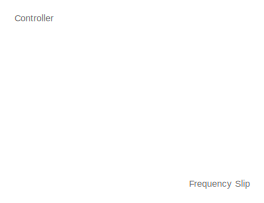
[diagram: root canvas - part 1/7, top right region]
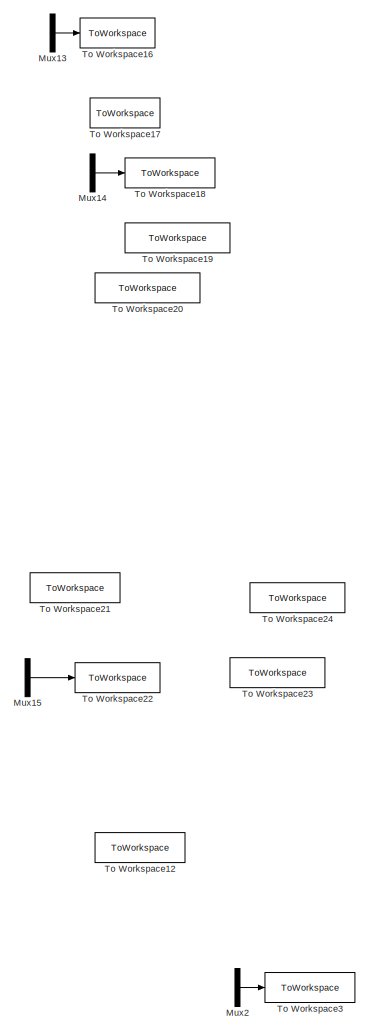
[diagram: root canvas - part 2/7, middle left region]
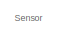
[diagram: root canvas - part 3/7, top center region]
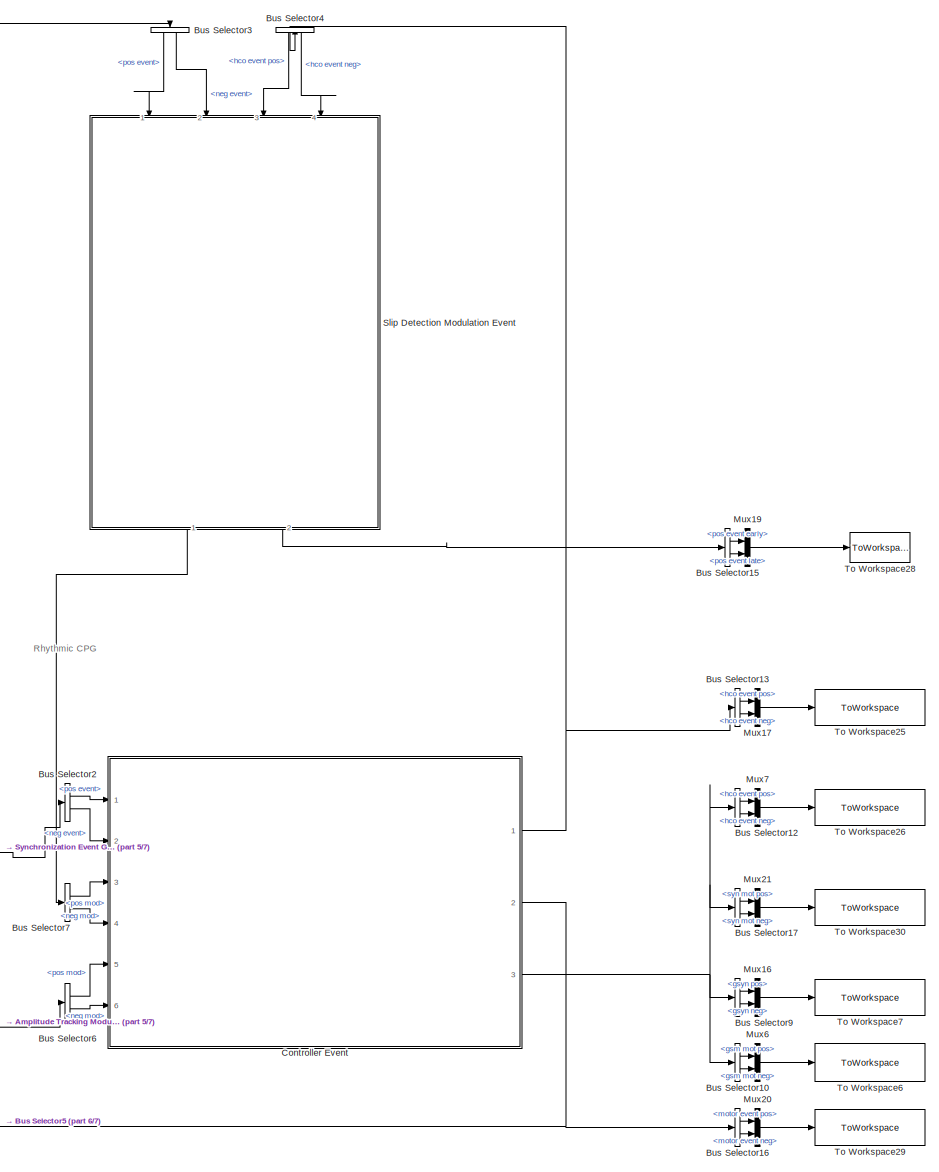
[diagram: root canvas - part 4/7, middle right region]
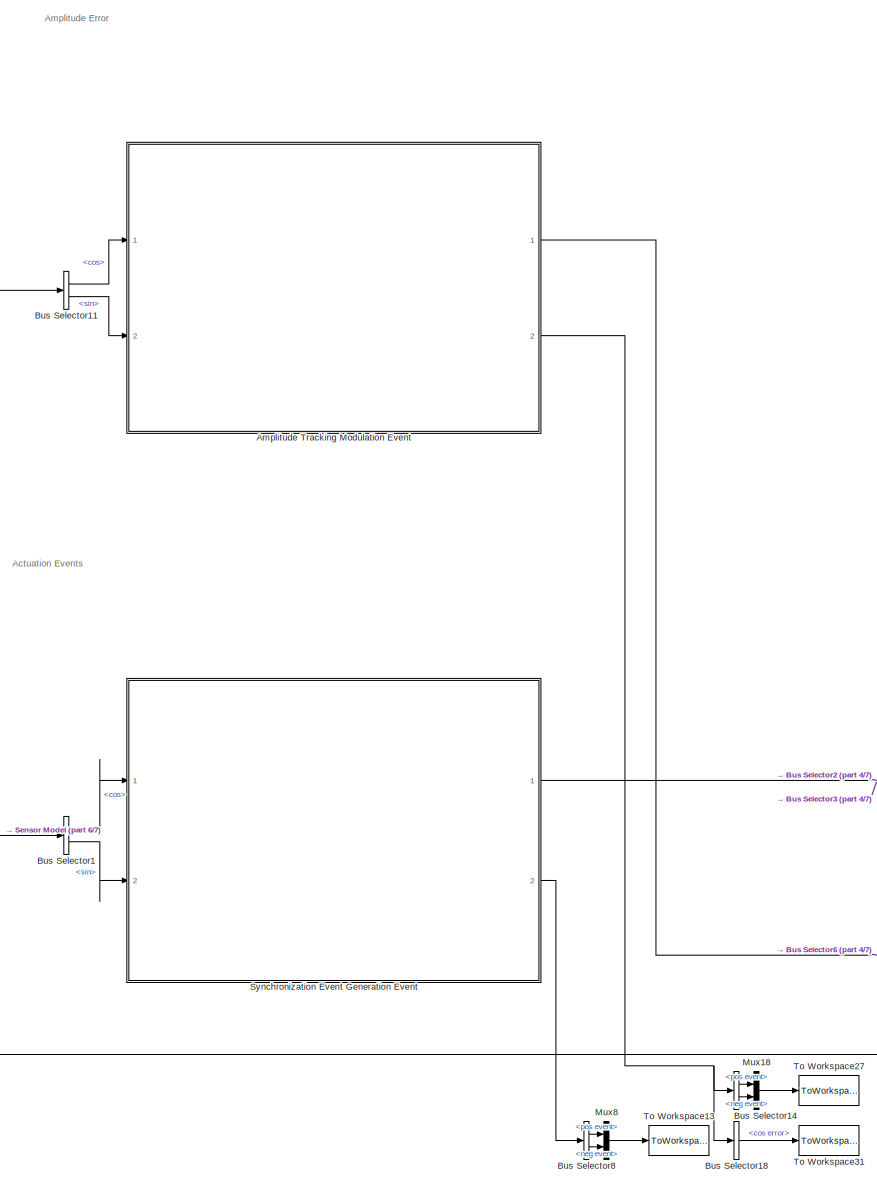
[diagram: root canvas - part 5/7, central region]
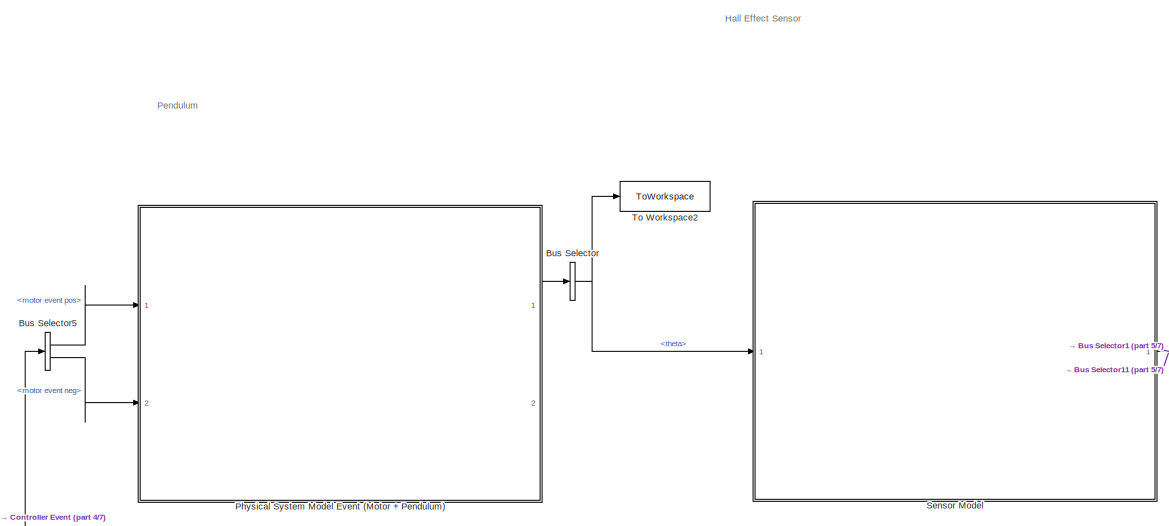
[diagram: root canvas - part 6/7, central region]
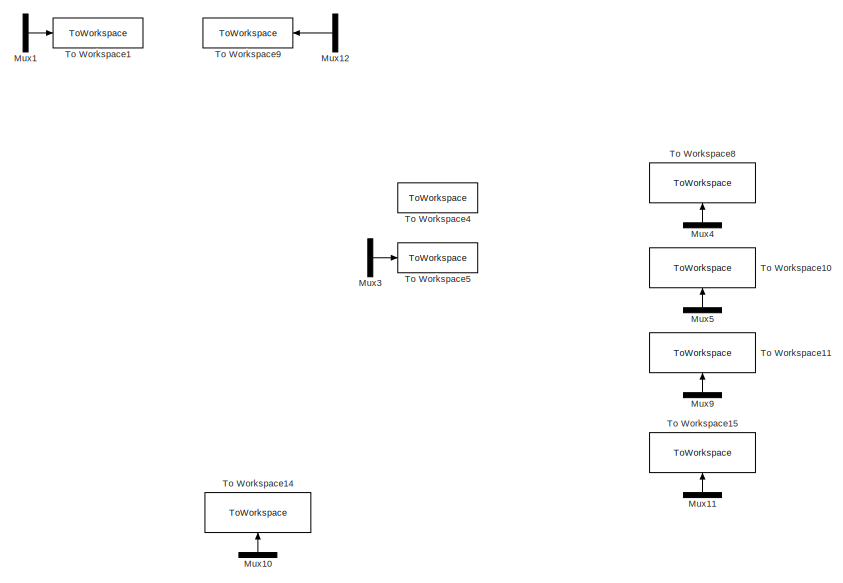
[diagram: root canvas - part 7/7, bottom left region]
MODEL slx_1399390a4108
KIND model
CONFIG AbsTol = auto
CONFIG EnableMultiTasking = off
CONFIG FixedStep = auto
CONFIG MaxStep = auto
CONFIG MinStep = auto
CONFIG RelTol = 1e-3
CONFIG SampleTimeConstraint = Unconstrained
CONFIG SolverName = VariableStepAuto
CONFIG StartTime = 0.0
CONFIG StopTime = 20
WORKSPACE source: mxarray member
WORKSPACE base_gsm = 2.3
WORKSPACE base_gsyn = -2
WORKSPACE cos_amp = 2.5
WORKSPACE cos_center = 0
WORKSPACE friction_factor = 1
WORKSPACE mass_density = 951
WORKSPACE mass_radius = 0.05
WORKSPACE mod_strength_gsm = 1.8
WORKSPACE mod_strength_gsyn = 1.8
WORKSPACE noisePwr = 3e-06
WORKSPACE pendulum_length = 0.4267
WORKSPACE prob_event_loss = 0
WORKSPACE ref_angle = 2
WORKSPACE rel_diff = 0.1
WORKSPACE rel_mod = 100000
WORKSPACE rel_noise = 4
WORKSPACE sampleTime = 0.001
WORKSPACE sin_amp = 2.5
WORKSPACE sin_center = 0
WORKSPACE start_angle = 0
WORKSPACE timescale = 0.004
WORKSPACE torque_max = 0.6
BLOCK [SubSystem] Amplitude Tracking Modulation Event
  Ports = [2, 2]
  ReferencedSubsystem = subsystem_amplitude_modulation_simplified
  RequestExecContextInheritance = off
  VariantControl = Event
BLOCK [BusSelector] Bus Selector
  OutputSignals = theta
  Ports = [1, 1]
BLOCK [BusSelector] Bus Selector1
  OutputSignals = cos,sin
  Ports = [1, 2]
BLOCK [BusSelector] Bus Selector10
  OutputSignals = gsm mot pos,gsm mot neg
  Ports = [1, 2]
BLOCK [BusSelector] Bus Selector11
  OutputSignals = cos,sin
  Ports = [1, 2]
BLOCK [BusSelector] Bus Selector12
  OutputSignals = hco event pos,hco event neg
  Ports = [1, 2]
BLOCK [BusSelector] Bus Selector13
  OutputSignals = hco event pos,hco event neg
  Ports = [1, 2]
BLOCK [BusSelector] Bus Selector14
  OutputSignals = pos event,neg event
  Ports = [1, 2]
BLOCK [BusSelector] Bus Selector15
  OutputSignals = pos event early,pos event late
  Ports = [1, 2]
BLOCK [BusSelector] Bus Selector16
  OutputSignals = motor event pos,motor event neg
  Ports = [1, 2]
BLOCK [BusSelector] Bus Selector17
  OutputSignals = syn mot pos,syn mot neg
  Ports = [1, 2]
BLOCK [BusSelector] Bus Selector18
  OutputSignals = cos error
  Ports = [1, 1]
BLOCK [BusSelector] Bus Selector2
  OutputSignals = pos event,neg event
  Ports = [1, 2]
BLOCK [BusSelector] Bus Selector3
  NameLocation = left
  OutputSignals = pos event,neg event
  Ports = [1, 2]
BLOCK [BusSelector] Bus Selector4
  NameLocation = left
  OutputSignals = hco event pos,hco event neg
  Ports = [1, 2]
BLOCK [BusSelector] Bus Selector5
  OutputSignals = motor event pos,motor event neg
  Ports = [1, 2]
BLOCK [BusSelector] Bus Selector6
  OutputSignals = pos mod,neg mod
  Ports = [1, 2]
BLOCK [BusSelector] Bus Selector7
  OutputSignals = pos mod,neg mod
  Ports = [1, 2]
BLOCK [BusSelector] Bus Selector8
  OutputSignals = pos event,neg event
  Ports = [1, 2]
BLOCK [BusSelector] Bus Selector9
  OutputSignals = gsyn pos,gsyn neg
  Ports = [1, 2]
BLOCK [SubSystem] Controller Event
  Ports = [6, 3]
  ReferencedSubsystem = subsystem_controller_simplified
  RequestExecContextInheritance = off
  VariantControl = Event
BLOCK [Mux] Mux1
  Commented = on
  DisplayOption = bar
  Inputs = 2
  Ports = [2, 1]
BLOCK [Mux] Mux10
  Commented = on
  DisplayOption = bar
  Inputs = 2
  NameLocation = right
  Ports = [2, 1]
BLOCK [Mux] Mux11
  DisplayOption = bar
  Inputs = 2
  NameLocation = right
  Ports = [2, 1]
BLOCK [Mux] Mux12
  Commented = on
  DisplayOption = bar
  Inputs = 3
  Ports = [3, 1]
BLOCK [Mux] Mux13
  Commented = on
  DisplayOption = bar
  Inputs = 2
  Ports = [2, 1]
BLOCK [Mux] Mux14
  Commented = on
  DisplayOption = bar
  Ports = [4, 1]
BLOCK [Mux] Mux15
  Commented = on
  DisplayOption = bar
  Inputs = 2
  Ports = [2, 1]
BLOCK [Mux] Mux16
  DisplayOption = bar
  Inputs = 2
  Ports = [2, 1]
BLOCK [Mux] Mux17
  DisplayOption = bar
  Inputs = 2
  Ports = [2, 1]
BLOCK [Mux] Mux18
  DisplayOption = bar
  Inputs = 2
  Ports = [2, 1]
BLOCK [Mux] Mux19
  DisplayOption = bar
  Inputs = 2
  Ports = [2, 1]
BLOCK [Mux] Mux2
  Commented = on
  DisplayOption = bar
  Inputs = 2
  Ports = [2, 1]
BLOCK [Mux] Mux20
  DisplayOption = bar
  Inputs = 2
  Ports = [2, 1]
BLOCK [Mux] Mux21
  DisplayOption = bar
  Inputs = 2
  Ports = [2, 1]
BLOCK [Mux] Mux3
  Commented = on
  DisplayOption = bar
  Inputs = 2
  Ports = [2, 1]
BLOCK [Mux] Mux4
  Commented = on
  DisplayOption = bar
  Inputs = 2
  NameLocation = right
  Ports = [2, 1]
BLOCK [Mux] Mux5
  Commented = on
  DisplayOption = bar
  Inputs = 2
  NameLocation = right
  Ports = [2, 1]
BLOCK [Mux] Mux6
  DisplayOption = bar
  Inputs = 2
  Ports = [2, 1]
BLOCK [Mux] Mux7
  DisplayOption = bar
  Inputs = 2
  Ports = [2, 1]
BLOCK [Mux] Mux8
  DisplayOption = bar
  Inputs = 2
  Ports = [2, 1]
BLOCK [Mux] Mux9
  Commented = on
  DisplayOption = bar
  Inputs = 2
  NameLocation = right
  Ports = [2, 1]
BLOCK [SubSystem] Physical System Model Event (Motor + Pendulum)
  Ports = [2, 2]
  ReferencedSubsystem = subsystem_pendulum_system_simplified
  RequestExecContextInheritance = off
  VariantControl = Event
BLOCK [SubSystem] Sensor Model
  Ports = [1, 1]
  ReferencedSubsystem = subsystem_hall_effect_encoder
  RequestExecContextInheritance = off
BLOCK [SubSystem] Slip Detection Modulation Event
  NameLocation = left
  Ports = [4, 2]
  ReferencedSubsystem = subsystem_slip_modulation_simplified
  RequestExecContextInheritance = off
  VariantControl = Event
BLOCK [SubSystem] Synchronization Event Generation Event
  Ports = [2, 2]
  ReferencedSubsystem = subsystem_event_top_trig_simplified
  RequestExecContextInheritance = off
  VariantControl = Event
BLOCK [ToWorkspace] To Workspace1
  Commented = on
  FixptAsFi = on
  MaxDataPoints = inf
  NameLocation = top
  Ports = [1]
  SampleTime = sampleTime
  SaveFormat = Structure With Time
  VariableName = applied_torque
BLOCK [ToWorkspace] To Workspace10
  Commented = on
  FixptAsFi = on
  MaxDataPoints = inf
  NameLocation = left
  Ports = [1]
  SampleTime = sampleTime
  SaveFormat = Structure With Time
  VariableName = hco
BLOCK [ToWorkspace] To Workspace11
  Commented = on
  FixptAsFi = on
  MaxDataPoints = inf
  NameLocation = left
  Ports = [1]
  SampleTime = sampleTime
  SaveFormat = Structure With Time
  VariableName = hco_out
BLOCK [ToWorkspace] To Workspace12
  Commented = on
  FixptAsFi = on
  MaxDataPoints = inf
  NameLocation = top
  Ports = [1]
  SampleTime = sampleTime
  SaveFormat = Structure With Time
  VariableName = shaft_state
BLOCK [ToWorkspace] To Workspace13
  FixptAsFi = on
  MaxDataPoints = inf
  Ports = [1]
  SampleTime = sampleTime
  SaveFormat = Structure With Time
  VariableName = event_out
BLOCK [ToWorkspace] To Workspace14
  Commented = on
  FixptAsFi = on
  MaxDataPoints = inf
  NameLocation = right
  Ports = [1]
  SampleTime = sampleTime
  SaveFormat = Structure With Time
  VariableName = motor_neuron
BLOCK [ToWorkspace] To Workspace15
  Commented = on
  FixptAsFi = on
  MaxDataPoints = inf
  NameLocation = right
  Ports = [1]
  SampleTime = sampleTime
  SaveFormat = Structure With Time
  VariableName = motor_neuron_out
BLOCK [ToWorkspace] To Workspace16
  Commented = on
  FixptAsFi = on
  MaxDataPoints = inf
  Ports = [1]
  SampleTime = sampleTime
  SaveFormat = Structure With Time
  VariableName = rebound_amp
BLOCK [ToWorkspace] To Workspace17
  Commented = on
  FixptAsFi = on
  MaxDataPoints = inf
  Ports = [1]
  SampleTime = sampleTime
  SaveFormat = Structure With Time
  VariableName = cos_diff_amp
BLOCK [ToWorkspace] To Workspace18
  Commented = on
  FixptAsFi = on
  MaxDataPoints = inf
  Ports = [1]
  SampleTime = sampleTime
  SaveFormat = Structure With Time
  VariableName = amp_mod_weight
BLOCK [ToWorkspace] To Workspace19
  Commented = on
  FixptAsFi = on
  MaxDataPoints = inf
  Ports = [1]
  SampleTime = sampleTime
  SaveFormat = Structure With Time
  VariableName = amp_mod_pos_event
BLOCK [ToWorkspace] To Workspace2
  FixptAsFi = on
  MaxDataPoints = inf
  NameLocation = top
  Ports = [1]
  SampleTime = sampleTime
  SaveFormat = Structure With Time
  VariableName = measure
BLOCK [ToWorkspace] To Workspace20
  Commented = on
  FixptAsFi = on
  MaxDataPoints = inf
  Ports = [1]
  SampleTime = sampleTime
  SaveFormat = Structure With Time
  VariableName = amp_mod_neg_event
BLOCK [ToWorkspace] To Workspace21
  Commented = on
  FixptAsFi = on
  MaxDataPoints = inf
  Ports = [1]
  SampleTime = sampleTime
  SaveFormat = Structure With Time
  VariableName = slip_mod_bistable
BLOCK [ToWorkspace] To Workspace22
  Commented = on
  FixptAsFi = on
  MaxDataPoints = inf
  Ports = [1]
  SampleTime = sampleTime
  SaveFormat = Structure With Time
  VariableName = slip_mod_weight
BLOCK [ToWorkspace] To Workspace23
  Commented = on
  FixptAsFi = on
  MaxDataPoints = inf
  Ports = [1]
  SampleTime = sampleTime
  SaveFormat = Structure With Time
  VariableName = slip_mod_neg_event
BLOCK [ToWorkspace] To Workspace24
  Commented = on
  FixptAsFi = on
  MaxDataPoints = inf
  Ports = [1]
  SampleTime = sampleTime
  SaveFormat = Structure With Time
  VariableName = slip_mod_pos_event
BLOCK [ToWorkspace] To Workspace25
  FixptAsFi = on
  MaxDataPoints = inf
  NameLocation = top
  Ports = [1]
  SampleTime = sampleTime
  SaveFormat = Structure With Time
  VariableName = hco_out_real
BLOCK [ToWorkspace] To Workspace26
  FixptAsFi = on
  MaxDataPoints = inf
  NameLocation = top
  Ports = [1]
  SampleTime = sampleTime
  SaveFormat = Structure With Time
  VariableName = hco_out
BLOCK [ToWorkspace] To Workspace27
  FixptAsFi = on
  MaxDataPoints = inf
  Ports = [1]
  SampleTime = sampleTime
  SaveFormat = Structure With Time
  VariableName = event_out1
BLOCK [ToWorkspace] To Workspace28
  FixptAsFi = on
  MaxDataPoints = inf
  Ports = [1]
  SampleTime = sampleTime
  SaveFormat = Structure With Time
  VariableName = event_out2
BLOCK [ToWorkspace] To Workspace29
  FixptAsFi = on
  MaxDataPoints = inf
  NameLocation = top
  Ports = [1]
  SampleTime = sampleTime
  SaveFormat = Structure With Time
  VariableName = motor_out
BLOCK [ToWorkspace] To Workspace3
  Commented = on
  FixptAsFi = on
  MaxDataPoints = inf
  NameLocation = top
  Ports = [1]
  SampleTime = sampleTime
  SaveFormat = Structure With Time
  VariableName = hall_effect
BLOCK [ToWorkspace] To Workspace30
  FixptAsFi = on
  MaxDataPoints = inf
  NameLocation = top
  Ports = [1]
  SampleTime = sampleTime
  SaveFormat = Structure With Time
  VariableName = syn_mot
BLOCK [ToWorkspace] To Workspace31
  FixptAsFi = on
  MaxDataPoints = inf
  Ports = [1]
  SampleTime = sampleTime
  SaveFormat = Structure With Time
  VariableName = cos_error
BLOCK [ToWorkspace] To Workspace4
  Commented = on
  FixptAsFi = on
  MaxDataPoints = inf
  Ports = [1]
  SampleTime = sampleTime
  SaveFormat = Structure With Time
  VariableName = cos_diff_event
BLOCK [ToWorkspace] To Workspace5
  Commented = on
  FixptAsFi = on
  MaxDataPoints = inf
  Ports = [1]
  SampleTime = sampleTime
  SaveFormat = Structure With Time
  VariableName = rebound_event
BLOCK [ToWorkspace] To Workspace6
  FixptAsFi = on
  MaxDataPoints = inf
  NameLocation = top
  Ports = [1]
  SampleTime = sampleTime
  SaveFormat = Structure With Time
  VariableName = gsm_mot
BLOCK [ToWorkspace] To Workspace7
  FixptAsFi = on
  MaxDataPoints = inf
  NameLocation = top
  Ports = [1]
  SampleTime = sampleTime
  SaveFormat = Structure With Time
  VariableName = gsyn
BLOCK [ToWorkspace] To Workspace8
  Commented = on
  FixptAsFi = on
  MaxDataPoints = inf
  NameLocation = right
  Ports = [1]
  SampleTime = sampleTime
  SaveFormat = Structure With Time
  VariableName = depressing_synapse
BLOCK [ToWorkspace] To Workspace9
  Commented = on
  FixptAsFi = on
  MaxDataPoints = inf
  NameLocation = top
  Ports = [1]
  SampleTime = sampleTime
  SaveFormat = Structure With Time
  VariableName = pendulum_state
ANNOTATION (root): Actuation Events
ANNOTATION (root): Amplitude Error
ANNOTATION (root): Frequency Slip
ANNOTATION (root): Hall Effect Sensor
ANNOTATION (root): Pendulum
ANNOTATION (root): Rhythmic CPG
ANNOTATION (root): Controller
ANNOTATION (root): Sensor
LINE Amplitude Tracking Modulation Event:1 -> Bus Selector6:1
NET Amplitude Tracking Modulation Event:2 -> Bus Selector14:1, Bus Selector18:1
LINE Bus Selector10:1 -> Mux6:1
LINE Bus Selector10:2 -> Mux6:2
LINE Bus Selector11:1 -> Amplitude Tracking Modulation Event:1
LINE Bus Selector11:2 -> Amplitude Tracking Modulation Event:2
LINE Bus Selector12:1 -> Mux7:1
LINE Bus Selector12:2 -> Mux7:2
LINE Bus Selector13:1 -> Mux17:1
LINE Bus Selector13:2 -> Mux17:2
LINE Bus Selector14:1 -> Mux18:1
LINE Bus Selector14:2 -> Mux18:2
LINE Bus Selector15:1 -> Mux19:1
LINE Bus Selector15:2 -> Mux19:2
LINE Bus Selector16:1 -> Mux20:1
LINE Bus Selector16:2 -> Mux20:2
LINE Bus Selector17:1 -> Mux21:1
LINE Bus Selector17:2 -> Mux21:2
LINE Bus Selector18:1 -> To Workspace31:1
LINE Bus Selector1:1 -> Synchronization Event Generation Event:1
LINE Bus Selector1:2 -> Synchronization Event Generation Event:2
LINE Bus Selector2:1 -> Controller Event:1
LINE Bus Selector2:2 -> Controller Event:2
LINE Bus Selector3:1 -> Slip Detection Modulation Event:1
LINE Bus Selector3:2 -> Slip Detection Modulation Event:2
LINE Bus Selector4:1 -> Slip Detection Modulation Event:3
LINE Bus Selector4:2 -> Slip Detection Modulation Event:4
LINE Bus Selector5:1 -> Physical System Model Event (Motor + Pendulum):1
LINE Bus Selector5:2 -> Physical System Model Event (Motor + Pendulum):2
LINE Bus Selector6:1 -> Controller Event:5
LINE Bus Selector6:2 -> Controller Event:6
LINE Bus Selector7:1 -> Controller Event:3
LINE Bus Selector7:2 -> Controller Event:4
LINE Bus Selector8:1 -> Mux8:1
LINE Bus Selector8:2 -> Mux8:2
LINE Bus Selector9:1 -> Mux16:1
LINE Bus Selector9:2 -> Mux16:2
NET Bus Selector:1 -> Sensor Model:1, To Workspace2:1
NET Controller Event:1 -> Bus Selector13:1, Bus Selector4:1
NET Controller Event:2 -> Bus Selector16:1, Bus Selector5:1
NET Controller Event:3 -> Bus Selector10:1, Bus Selector12:1, Bus Selector17:1, Bus Selector9:1
LINE Mux10:1 -> To Workspace14:1
LINE Mux11:1 -> To Workspace15:1
LINE Mux12:1 -> To Workspace9:1
LINE Mux13:1 -> To Workspace16:1
LINE Mux14:1 -> To Workspace18:1
LINE Mux15:1 -> To Workspace22:1
LINE Mux16:1 -> To Workspace7:1
LINE Mux17:1 -> To Workspace25:1
LINE Mux18:1 -> To Workspace27:1
LINE Mux19:1 -> To Workspace28:1
LINE Mux1:1 -> To Workspace1:1
LINE Mux20:1 -> To Workspace29:1
LINE Mux21:1 -> To Workspace30:1
LINE Mux2:1 -> To Workspace3:1
LINE Mux3:1 -> To Workspace5:1
LINE Mux4:1 -> To Workspace8:1
LINE Mux5:1 -> To Workspace10:1
LINE Mux6:1 -> To Workspace6:1
LINE Mux7:1 -> To Workspace26:1
LINE Mux8:1 -> To Workspace13:1
LINE Mux9:1 -> To Workspace11:1
LINE Physical System Model Event (Motor + Pendulum):1 -> Bus Selector:1
NET Sensor Model:1 -> Bus Selector11:1, Bus Selector1:1
LINE Slip Detection Modulation Event:1 -> Bus Selector7:1
LINE Slip Detection Modulation Event:2 -> Bus Selector15:1
NET Synchronization Event Generation Event:1 -> Bus Selector2:1, Bus Selector3:1
LINE Synchronization Event Generation Event:2 -> Bus Selector8:1
note: NET lines group one-source signal fan-out (src -> all destinations, sorted); 1:1 wires keep LINE
